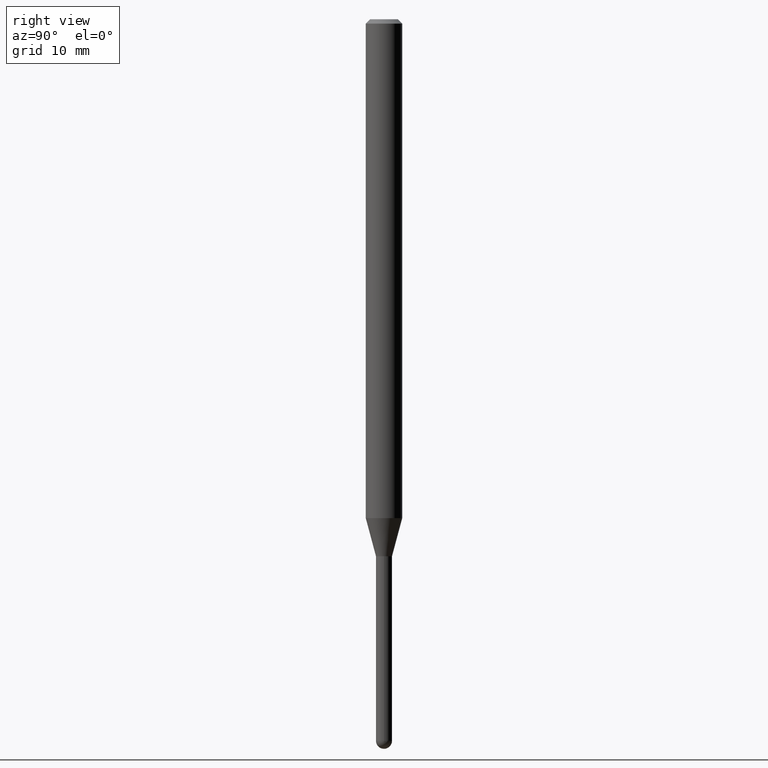
[diagram: clean part render]
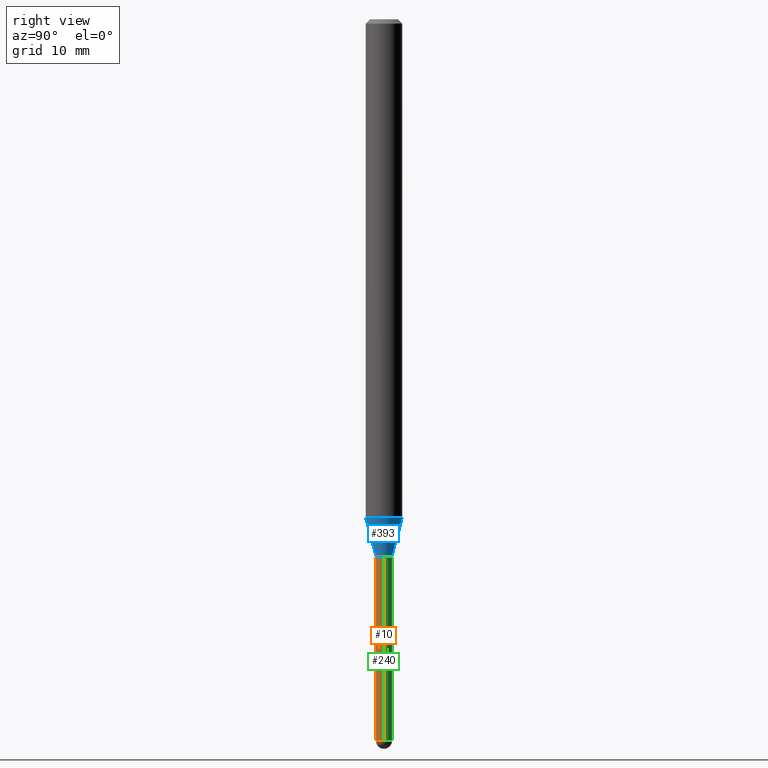
[diagram: same view with three faces highlighted in distinct colors, each labeled with its STEP entity id]
A machine part, right view with three faces highlighted in distinct colors.
Their STEP definitions:

[orange] entity #10 — the highlighted cylindrical surface (edge-blend (fillet) strip) has radius 0.6985 mm, axis along (-0, 0, 1).
#7 = VERTEX_POINT ( 'NONE', #269 ) ;
#10 = ADVANCED_FACE ( 'NONE', ( #348 ), #67, .T. ) ;
#31 = EDGE_CURVE ( 'NONE', #253, #355, #64, .T. ) ;
#54 = DIRECTION ( 'NONE',  ( -2.445468806185136877E-29, 3.491481338843145188E-15, 1.000000000000000000 ) ) ;
#64 = LINE ( 'NONE', #223, #266 ) ;
#65 = EDGE_CURVE ( 'NONE', #355, #496, #316, .T. ) ;
#66 = DIRECTION ( 'NONE',  ( 1.000000000000000000, -6.982962677686279332E-15, 0.000000000000000000 ) ) ;
#67 = CYLINDRICAL_SURFACE ( 'NONE', #234, 0.02750000000000000014 ) ;
#69 = DIRECTION ( 'NONE',  ( -2.445468806185136597E-29, 3.491481338843145583E-15, 1.000000000000000000 ) ) ;
#73 = AXIS2_PLACEMENT_3D ( 'NONE', #113, #212, #262 ) ;
#82 = AXIS2_PLACEMENT_3D ( 'NONE', #268, #384, #144 ) ;
#103 = DIRECTION ( 'NONE',  ( 1.000000000000000000, -6.982962677686266711E-15, 4.876176775795935793E-29 ) ) ;
#113 = CARTESIAN_POINT ( 'NONE',  ( 6.046421623292748621E-29, -8.632687610289675147E-15, -2.472499999999999254 ) ) ;
#135 = CARTESIAN_POINT ( 'NONE',  ( 0.02750000000000000014, -1.920314736363723444E-16, 1.340948613343882413E-30 ) ) ;
#144 = DIRECTION ( 'NONE',  ( 1.000000000000000000, -6.982962677686279332E-15, 0.000000000000000000 ) ) ;
#152 = CARTESIAN_POINT ( 'NONE',  ( 0.02750000000000000014, -6.616357137107761216E-15, -1.840000000000000080 ) ) ;
#158 = CARTESIAN_POINT ( 'NONE',  ( -1.953992523339674261E-16, -0.02750000000000868070, -2.472499999999999254 ) ) ;
#166 = EDGE_LOOP ( 'NONE', ( #208, #250, #313, #289, #442 ) ) ;
#174 = CARTESIAN_POINT ( 'NONE',  ( -0.02750000000000000014, -7.333107384546504605E-15, -1.840000000000000080 ) ) ;
#196 = CIRCLE ( 'NONE', #440, 0.02750000000000000014 ) ;
#208 = ORIENTED_EDGE ( 'NONE', *, *, #31, .F. ) ;
#212 = DIRECTION ( 'NONE',  ( -2.445468806185136597E-29, 3.491481338843145583E-15, 1.000000000000000000 ) ) ;
#215 = VECTOR ( 'NONE', #54, 39.37007874015748143 ) ;
#223 = CARTESIAN_POINT ( 'NONE',  ( -0.02750000000000000014, 1.953992523340275521E-16, -1.352707149820099181E-30 ) ) ;
#230 = CARTESIAN_POINT ( 'NONE',  ( 0.000000000000000000, 0.000000000000000000, 0.000000000000000000 ) ) ;
#234 = AXIS2_PLACEMENT_3D ( 'NONE', #230, #505, #103 ) ;
#250 = ORIENTED_EDGE ( 'NONE', *, *, #307, .T. ) ;
#253 = VERTEX_POINT ( 'NONE', #354 ) ;
#262 = DIRECTION ( 'NONE',  ( 1.000000000000000000, -6.982962677686279332E-15, 0.000000000000000000 ) ) ;
#266 = VECTOR ( 'NONE', #470, 39.37007874015748143 ) ;
#268 = CARTESIAN_POINT ( 'NONE',  ( 4.499662603380651271E-29, -6.424325663471388724E-15, -1.840000000000000080 ) ) ;
#269 = CARTESIAN_POINT ( 'NONE',  ( 0.02750000000000000014, -7.720538110516904428E-15, -2.472499999999999254 ) ) ;
#284 = VERTEX_POINT ( 'NONE', #158 ) ;
#289 = ORIENTED_EDGE ( 'NONE', *, *, #424, .T. ) ;
#307 = EDGE_CURVE ( 'NONE', #253, #284, #460, .T. ) ;
#313 = ORIENTED_EDGE ( 'NONE', *, *, #487, .T. ) ;
#316 = CIRCLE ( 'NONE', #82, 0.02750000000000000014 ) ;
#348 = FACE_OUTER_BOUND ( 'NONE', #166, .T. ) ;
#354 = CARTESIAN_POINT ( 'NONE',  ( -0.02750000000000000014, -7.333107384546504605E-15, -2.472499999999999254 ) ) ;
#355 = VERTEX_POINT ( 'NONE', #174 ) ;
#384 = DIRECTION ( 'NONE',  ( -2.445468806185136597E-29, 3.491481338843145583E-15, 1.000000000000000000 ) ) ;
#424 = EDGE_CURVE ( 'NONE', #7, #496, #494, .T. ) ;
#440 = AXIS2_PLACEMENT_3D ( 'NONE', #511, #69, #66 ) ;
#442 = ORIENTED_EDGE ( 'NONE', *, *, #65, .F. ) ;
#460 = CIRCLE ( 'NONE', #73, 0.02750000000000000014 ) ;
#470 = DIRECTION ( 'NONE',  ( -2.445468806185136877E-29, 3.491481338843145188E-15, 1.000000000000000000 ) ) ;
#487 = EDGE_CURVE ( 'NONE', #284, #7, #196, .T. ) ;
#494 = LINE ( 'NONE', #135, #215 ) ;
#496 = VERTEX_POINT ( 'NONE', #152 ) ;
#505 = DIRECTION ( 'NONE',  ( -2.445468806185136597E-29, 3.491481338843145583E-15, 1.000000000000000000 ) ) ;
#511 = CARTESIAN_POINT ( 'NONE',  ( 6.046421623292748621E-29, -8.632687610289675147E-15, -2.472499999999999254 ) ) ;

[blue] entity #393 — the highlighted conical surface has half-angle 15 deg.
#17 = VECTOR ( 'NONE', #446, 39.37007874015748143 ) ;
#18 = LINE ( 'NONE', #286, #52 ) ;
#20 = FACE_OUTER_BOUND ( 'NONE', #175, .T. ) ;
#41 = DIRECTION ( 'NONE',  ( -2.445463148616288200E-29, 3.491489440803745492E-15, 1.000000000000000000 ) ) ;
#50 = VERTEX_POINT ( 'NONE', #301 ) ;
#52 = VECTOR ( 'NONE', #178, 39.37007874015748854 ) ;
#62 = AXIS2_PLACEMENT_3D ( 'NONE', #295, #422, #256 ) ;
#134 = ORIENTED_EDGE ( 'NONE', *, *, #259, .F. ) ;
#139 = AXIS2_PLACEMENT_3D ( 'NONE', #180, #379, #335 ) ;
#153 = EDGE_CURVE ( 'NONE', #395, #482, #18, .T. ) ;
#175 = EDGE_LOOP ( 'NONE', ( #508, #467, #134, #265 ) ) ;
#178 = DIRECTION ( 'NONE',  ( -1.807323732225381021E-15, -0.2588190451025254579, 0.9659258262890669799 ) ) ;
#180 = CARTESIAN_POINT ( 'NONE',  ( 4.499652193453970198E-29, -6.424340571078891610E-15, -1.840000000000000080 ) ) ;
#189 = CARTESIAN_POINT ( 'NONE',  ( -4.364351673553500570E-16, -0.06250000000000599520, -1.709378221735093017 ) ) ;
#199 = EDGE_CURVE ( 'NONE', #350, #50, #474, .T. ) ;
#201 = CIRCLE ( 'NONE', #139, 0.02749999999999992034 ) ;
#246 = CARTESIAN_POINT ( 'NONE',  ( 4.180221448300412991E-29, -5.968276011527961205E-15, -1.709378221735093462 ) ) ;
#256 = DIRECTION ( 'NONE',  ( -6.982962677686265922E-15, -1.000000000000000000, 0.000000000000000000 ) ) ;
#259 = EDGE_CURVE ( 'NONE', #482, #50, #404, .T. ) ;
#265 = ORIENTED_EDGE ( 'NONE', *, *, #153, .F. ) ;
#286 = CARTESIAN_POINT ( 'NONE',  ( -1.920314736363267384E-16, -0.02750000000000634576, -1.840000000000000080 ) ) ;
#295 = CARTESIAN_POINT ( 'NONE',  ( 4.499652193453970198E-29, -6.424340571078891610E-15, -1.840000000000000080 ) ) ;
#301 = CARTESIAN_POINT ( 'NONE',  ( 4.440892098501041300E-16, 0.06249999999999401173, -1.709378221735093684 ) ) ;
#305 = AXIS2_PLACEMENT_3D ( 'NONE', #246, #41, #361 ) ;
#321 = CARTESIAN_POINT ( 'NONE',  ( 1.953992523340719502E-16, 0.02749999999999349493, -1.840000000000000080 ) ) ;
#335 = DIRECTION ( 'NONE',  ( -6.982962677686265922E-15, -1.000000000000000000, 0.000000000000000000 ) ) ;
#350 = VERTEX_POINT ( 'NONE', #500 ) ;
#361 = DIRECTION ( 'NONE',  ( -6.982962677686265922E-15, -1.000000000000000000, 4.370956789862821150E-15 ) ) ;
#379 = DIRECTION ( 'NONE',  ( -2.445463148616288200E-29, 3.491489440803745492E-15, 1.000000000000000000 ) ) ;
#393 = ADVANCED_FACE ( 'NONE', ( #20 ), #509, .T. ) ;
#395 = VERTEX_POINT ( 'NONE', #459 ) ;
#400 = EDGE_CURVE ( 'NONE', #395, #350, #201, .T. ) ;
#404 = CIRCLE ( 'NONE', #305, 0.06250000000000000000 ) ;
#422 = DIRECTION ( 'NONE',  ( -2.445463148616288200E-29, 3.491489440803745492E-15, 1.000000000000000000 ) ) ;
#446 = DIRECTION ( 'NONE',  ( 1.839019923739651986E-15, 0.2588190451025322303, 0.9659258262890650926 ) ) ;
#459 = CARTESIAN_POINT ( 'NONE',  ( -1.920314736363267384E-16, -0.02750000000000634576, -1.840000000000000080 ) ) ;
#467 = ORIENTED_EDGE ( 'NONE', *, *, #199, .T. ) ;
#474 = LINE ( 'NONE', #321, #17 ) ;
#482 = VERTEX_POINT ( 'NONE', #189 ) ;
#500 = CARTESIAN_POINT ( 'NONE',  ( 3.197442310920882619E-16, 0.02749999999999349493, -1.840000000000000080 ) ) ;
#508 = ORIENTED_EDGE ( 'NONE', *, *, #400, .T. ) ;
#509 = CONICAL_SURFACE ( 'NONE', #62, 0.02749999999999992034, 0.2617993877991577900 ) ;

[green] entity #240 — the highlighted cylindrical surface (edge-blend (fillet) strip) has radius 0.6985 mm, axis along (-0, 0, 1).
#4 = AXIS2_PLACEMENT_3D ( 'NONE', #249, #282, #164 ) ;
#7 = VERTEX_POINT ( 'NONE', #269 ) ;
#31 = EDGE_CURVE ( 'NONE', #253, #355, #64, .T. ) ;
#36 = VERTEX_POINT ( 'NONE', #186 ) ;
#38 = DIRECTION ( 'NONE',  ( 1.000000000000000000, -6.982962677686279332E-15, 0.000000000000000000 ) ) ;
#40 = ORIENTED_EDGE ( 'NONE', *, *, #424, .F. ) ;
#46 = EDGE_LOOP ( 'NONE', ( #414, #475, #63, #40, #324 ) ) ;
#47 = CARTESIAN_POINT ( 'NONE',  ( 6.046421623292748621E-29, -8.632687610289675147E-15, -2.472499999999999254 ) ) ;
#54 = DIRECTION ( 'NONE',  ( -2.445468806185136877E-29, 3.491481338843145188E-15, 1.000000000000000000 ) ) ;
#63 = ORIENTED_EDGE ( 'NONE', *, *, #507, .F. ) ;
#64 = LINE ( 'NONE', #223, #266 ) ;
#135 = CARTESIAN_POINT ( 'NONE',  ( 0.02750000000000000014, -1.920314736363723444E-16, 1.340948613343882413E-30 ) ) ;
#145 = EDGE_CURVE ( 'NONE', #7, #36, #449, .T. ) ;
#148 = CIRCLE ( 'NONE', #4, 0.02750000000000000014 ) ;
#152 = CARTESIAN_POINT ( 'NONE',  ( 0.02750000000000000014, -6.616357137107761216E-15, -1.840000000000000080 ) ) ;
#154 = CARTESIAN_POINT ( 'NONE',  ( 4.499662603380651271E-29, -6.424325663471388724E-15, -1.840000000000000080 ) ) ;
#164 = DIRECTION ( 'NONE',  ( 1.000000000000000000, -6.982962677686279332E-15, 0.000000000000000000 ) ) ;
#174 = CARTESIAN_POINT ( 'NONE',  ( -0.02750000000000000014, -7.333107384546504605E-15, -1.840000000000000080 ) ) ;
#186 = CARTESIAN_POINT ( 'NONE',  ( 1.920314736364331113E-16, 0.02749999999999141673, -2.472499999999999254 ) ) ;
#202 = CIRCLE ( 'NONE', #435, 0.02750000000000000014 ) ;
#215 = VECTOR ( 'NONE', #54, 39.37007874015748143 ) ;
#220 = EDGE_CURVE ( 'NONE', #36, #253, #148, .T. ) ;
#223 = CARTESIAN_POINT ( 'NONE',  ( -0.02750000000000000014, 1.953992523340275521E-16, -1.352707149820099181E-30 ) ) ;
#237 = AXIS2_PLACEMENT_3D ( 'NONE', #47, #255, #463 ) ;
#240 = ADVANCED_FACE ( 'NONE', ( #312 ), #244, .T. ) ;
#244 = CYLINDRICAL_SURFACE ( 'NONE', #398, 0.02750000000000000014 ) ;
#249 = CARTESIAN_POINT ( 'NONE',  ( 6.046421623292748621E-29, -8.632687610289675147E-15, -2.472499999999999254 ) ) ;
#253 = VERTEX_POINT ( 'NONE', #354 ) ;
#255 = DIRECTION ( 'NONE',  ( -2.445468806185136597E-29, 3.491481338843145583E-15, 1.000000000000000000 ) ) ;
#266 = VECTOR ( 'NONE', #470, 39.37007874015748143 ) ;
#269 = CARTESIAN_POINT ( 'NONE',  ( 0.02750000000000000014, -7.720538110516904428E-15, -2.472499999999999254 ) ) ;
#282 = DIRECTION ( 'NONE',  ( -2.445468806185136597E-29, 3.491481338843145583E-15, 1.000000000000000000 ) ) ;
#312 = FACE_OUTER_BOUND ( 'NONE', #46, .T. ) ;
#324 = ORIENTED_EDGE ( 'NONE', *, *, #145, .T. ) ;
#354 = CARTESIAN_POINT ( 'NONE',  ( -0.02750000000000000014, -7.333107384546504605E-15, -2.472499999999999254 ) ) ;
#355 = VERTEX_POINT ( 'NONE', #174 ) ;
#357 = DIRECTION ( 'NONE',  ( -2.445468806185136597E-29, 3.491481338843145583E-15, 1.000000000000000000 ) ) ;
#398 = AXIS2_PLACEMENT_3D ( 'NONE', #444, #357, #405 ) ;
#405 = DIRECTION ( 'NONE',  ( 1.000000000000000000, -6.982962677686266711E-15, 4.876176775795935793E-29 ) ) ;
#414 = ORIENTED_EDGE ( 'NONE', *, *, #220, .T. ) ;
#424 = EDGE_CURVE ( 'NONE', #7, #496, #494, .T. ) ;
#435 = AXIS2_PLACEMENT_3D ( 'NONE', #154, #471, #38 ) ;
#444 = CARTESIAN_POINT ( 'NONE',  ( 0.000000000000000000, 0.000000000000000000, 0.000000000000000000 ) ) ;
#449 = CIRCLE ( 'NONE', #237, 0.02750000000000000014 ) ;
#463 = DIRECTION ( 'NONE',  ( 1.000000000000000000, -6.982962677686279332E-15, 0.000000000000000000 ) ) ;
#470 = DIRECTION ( 'NONE',  ( -2.445468806185136877E-29, 3.491481338843145188E-15, 1.000000000000000000 ) ) ;
#471 = DIRECTION ( 'NONE',  ( -2.445468806185136597E-29, 3.491481338843145583E-15, 1.000000000000000000 ) ) ;
#475 = ORIENTED_EDGE ( 'NONE', *, *, #31, .T. ) ;
#494 = LINE ( 'NONE', #135, #215 ) ;
#496 = VERTEX_POINT ( 'NONE', #152 ) ;
#507 = EDGE_CURVE ( 'NONE', #496, #355, #202, .T. ) ;